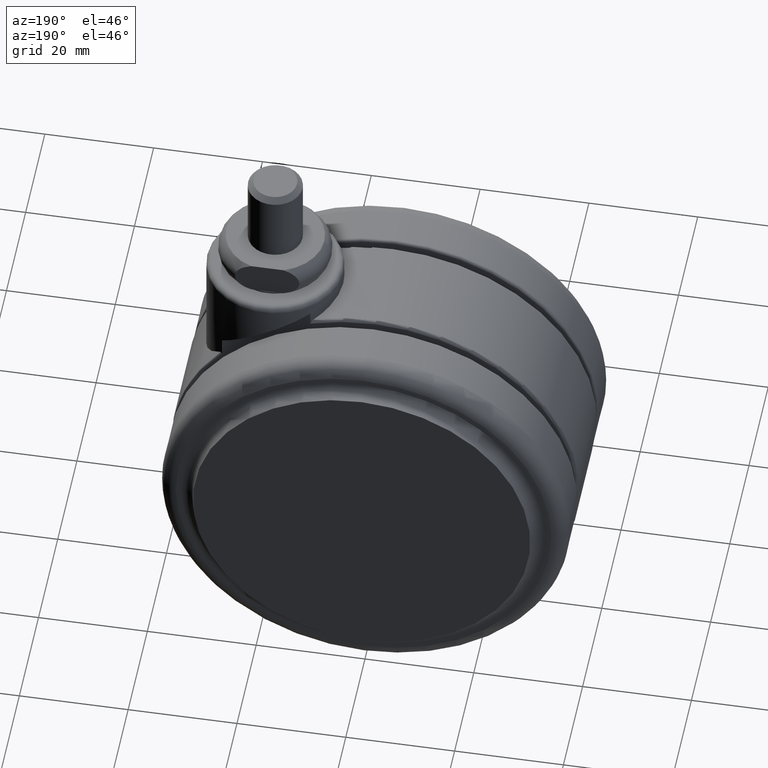
[diagram: clean part render]
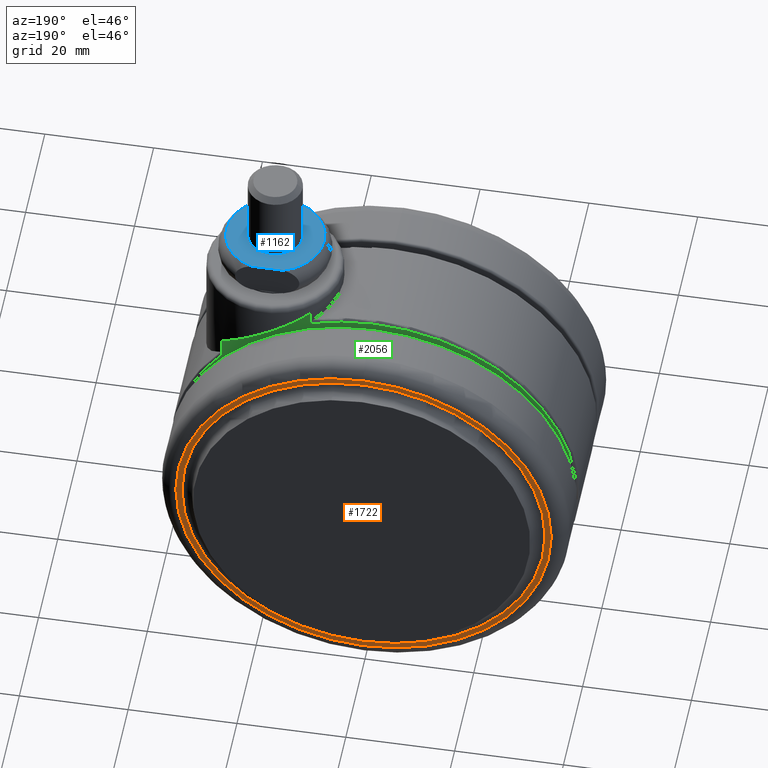
[diagram: same view with three faces highlighted in distinct colors, each labeled with its STEP entity id]
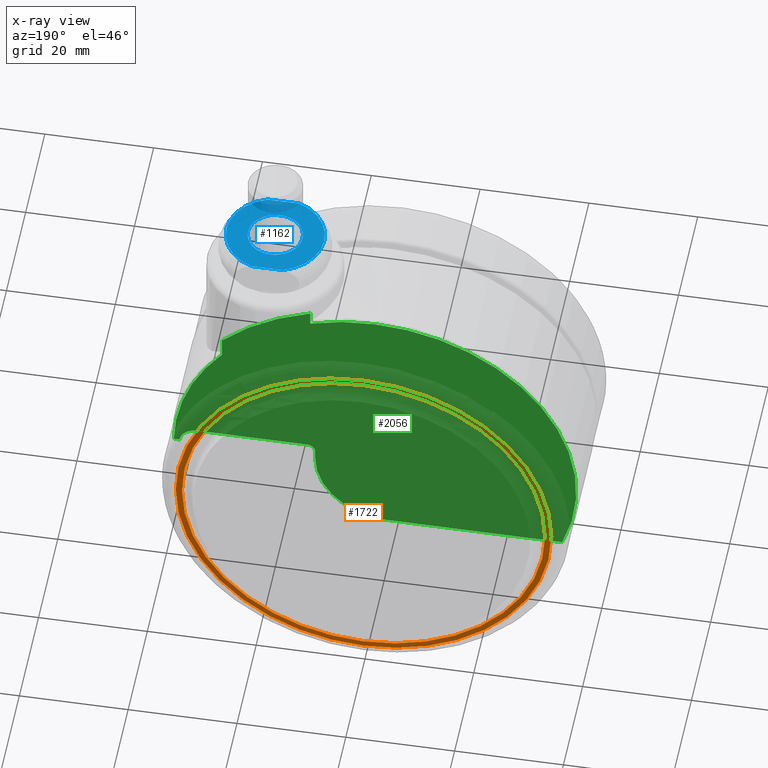
[diagram: x-ray of the same camera — body ghosted, the three highlighted faces saturated]
A machine part, auxiliary view with three faces highlighted in distinct colors.
The next image is the same camera in x-ray (body ghosted, the three faces saturated) — at least one of them is partly hidden behind the body in this view.
Their STEP definitions:

[orange] entity #1722 — the highlighted planar face has unit normal (0, 1, 0).
#18 = DIRECTION ( 'NONE',  ( -1.582413479254075000E-015, -1.000000000000000000, 0.0000000000000000000 ) ) ;
#119 = CARTESIAN_POINT ( 'NONE',  ( -20.00000000000000000, 21.50000000000000000, -40.50000000000000000 ) ) ;
#217 = CARTESIAN_POINT ( 'NONE',  ( -20.00000000000000400, 21.50000000000000000, -5.999999999999998200 ) ) ;
#250 = DIRECTION ( 'NONE',  ( 0.0000000000000000000, 0.0000000000000000000, -1.000000000000000000 ) ) ;
#341 = ORIENTED_EDGE ( 'NONE', *, *, #1208, .F. ) ;
#386 = CIRCLE ( 'NONE', #2984, 34.50000000000000700 ) ;
#496 = DIRECTION ( 'NONE',  ( 0.0000000000000000000, 0.0000000000000000000, -1.000000000000000000 ) ) ;
#521 = DIRECTION ( 'NONE',  ( -1.582413479254075000E-015, -1.000000000000000000, 0.0000000000000000000 ) ) ;
#576 = FACE_OUTER_BOUND ( 'NONE', #3151, .T. ) ;
#641 = PLANE ( 'NONE',  #2205 ) ;
#795 = CARTESIAN_POINT ( 'NONE',  ( -20.00000000000000000, 21.50000000000000000, -40.50000000000000000 ) ) ;
#810 = EDGE_CURVE ( 'NONE', #3105, #3437, #2937, .T. ) ;
#842 = DIRECTION ( 'NONE',  ( -1.582413479254075000E-015, -1.000000000000000000, 0.0000000000000000000 ) ) ;
#872 = CARTESIAN_POINT ( 'NONE',  ( -20.00000000000000000, 21.50000000000000000, -40.50000000000000000 ) ) ;
#907 = CARTESIAN_POINT ( 'NONE',  ( -20.00000000000000400, 21.50000000000000000, -73.88327505756353700 ) ) ;
#1040 = EDGE_CURVE ( 'NONE', #3437, #3105, #3086, .T. ) ;
#1069 = AXIS2_PLACEMENT_3D ( 'NONE', #872, #842, #250 ) ;
#1208 = EDGE_CURVE ( 'NONE', #1267, #1721, #386, .T. ) ;
#1267 = VERTEX_POINT ( 'NONE', #217 ) ;
#1274 = ORIENTED_EDGE ( 'NONE', *, *, #1040, .T. ) ;
#1403 = EDGE_CURVE ( 'NONE', #1721, #1267, #1914, .T. ) ;
#1420 = DIRECTION ( 'NONE',  ( -1.582413479254075000E-015, -1.000000000000000000, 0.0000000000000000000 ) ) ;
#1557 = DIRECTION ( 'NONE',  ( 0.0000000000000000000, 0.0000000000000000000, -1.000000000000000000 ) ) ;
#1635 = CARTESIAN_POINT ( 'NONE',  ( -20.00000000000000000, 21.50000000000000000, -75.00000000000001400 ) ) ;
#1704 = DIRECTION ( 'NONE',  ( 0.0000000000000000000, 0.0000000000000000000, -1.000000000000000000 ) ) ;
#1721 = VERTEX_POINT ( 'NONE', #1635 ) ;
#1722 = ADVANCED_FACE ( 'NONE', ( #576, #2196 ), #641, .T. ) ;
#1844 = DIRECTION ( 'NONE',  ( 1.582413479254075000E-015, 1.000000000000000000, 0.0000000000000000000 ) ) ;
#1914 = CIRCLE ( 'NONE', #1069, 34.50000000000000700 ) ;
#2196 = FACE_BOUND ( 'NONE', #3004, .T. ) ;
#2205 = AXIS2_PLACEMENT_3D ( 'NONE', #3090, #1844, #1557 ) ;
#2554 = DIRECTION ( 'NONE',  ( 0.0000000000000000000, 0.0000000000000000000, -1.000000000000000000 ) ) ;
#2937 = CIRCLE ( 'NONE', #3273, 33.38327505756375800 ) ;
#2984 = AXIS2_PLACEMENT_3D ( 'NONE', #795, #521, #496 ) ;
#3004 = EDGE_LOOP ( 'NONE', ( #3881, #1274 ) ) ;
#3086 = CIRCLE ( 'NONE', #3854, 33.38327505756375800 ) ;
#3090 = CARTESIAN_POINT ( 'NONE',  ( -53.38327505756370100, 21.50000000000000000, -40.50000000000000000 ) ) ;
#3095 = ORIENTED_EDGE ( 'NONE', *, *, #1403, .F. ) ;
#3105 = VERTEX_POINT ( 'NONE', #907 ) ;
#3151 = EDGE_LOOP ( 'NONE', ( #3095, #341 ) ) ;
#3273 = AXIS2_PLACEMENT_3D ( 'NONE', #3643, #1420, #1704 ) ;
#3437 = VERTEX_POINT ( 'NONE', #3485 ) ;
#3485 = CARTESIAN_POINT ( 'NONE',  ( -20.00000000000000700, 21.50000000000000000, -7.116724942436476900 ) ) ;
#3643 = CARTESIAN_POINT ( 'NONE',  ( -20.00000000000000000, 21.50000000000000000, -40.50000000000000000 ) ) ;
#3854 = AXIS2_PLACEMENT_3D ( 'NONE', #119, #18, #2554 ) ;
#3881 = ORIENTED_EDGE ( 'NONE', *, *, #810, .T. ) ;

[blue] entity #1162 — the highlighted planar face has unit normal (0, 0, 1).
#73 = CARTESIAN_POINT ( 'NONE',  ( 0.0000000000000000000, 2.842170943040399500E-014, 6.499999999999730000 ) ) ;
#80 = EDGE_LOOP ( 'NONE', ( #402, #891 ) ) ;
#118 = CARTESIAN_POINT ( 'NONE',  ( 9.165151389911629900, 8.500000000000000000, 6.499999999999619900 ) ) ;
#158 = FACE_OUTER_BOUND ( 'NONE', #634, .T. ) ;
#167 = VERTEX_POINT ( 'NONE', #3459 ) ;
#187 = CARTESIAN_POINT ( 'NONE',  ( 0.0000000000000000000, 0.0000000000000000000, 6.500000005047589900 ) ) ;
#256 = ORIENTED_EDGE ( 'NONE', *, *, #3414, .F. ) ;
#380 = DIRECTION ( 'NONE',  ( 1.000000000000000000, 0.0000000000000000000, 0.0000000000000000000 ) ) ;
#402 = ORIENTED_EDGE ( 'NONE', *, *, #1901, .F. ) ;
#416 = ORIENTED_EDGE ( 'NONE', *, *, #3011, .F. ) ;
#503 = DIRECTION ( 'NONE',  ( -1.000000000000000000, 0.0000000000000000000, 0.0000000000000000000 ) ) ;
#508 = VERTEX_POINT ( 'NONE', #3479 ) ;
#519 = EDGE_CURVE ( 'NONE', #167, #2029, #2061, .T. ) ;
#608 = ORIENTED_EDGE ( 'NONE', *, *, #2011, .T. ) ;
#632 = CIRCLE ( 'NONE', #1872, 5.000000000000000000 ) ;
#634 = EDGE_LOOP ( 'NONE', ( #608, #1307, #416, #2365, #256 ) ) ;
#664 = VERTEX_POINT ( 'NONE', #1850 ) ;
#778 = DIRECTION ( 'NONE',  ( 0.0000000000000000000, 0.0000000000000000000, -1.000000000000000000 ) ) ;
#790 = CIRCLE ( 'NONE', #2077, 8.999999305340569600 ) ;
#889 = DIRECTION ( 'NONE',  ( 0.0000000000000000000, 0.0000000000000000000, 1.000000000000000000 ) ) ;
#891 = ORIENTED_EDGE ( 'NONE', *, *, #1426, .F. ) ;
#1142 = VECTOR ( 'NONE', #2240, 1000.000000000000000 ) ;
#1150 = AXIS2_PLACEMENT_3D ( 'NONE', #73, #2206, #380 ) ;
#1162 = ADVANCED_FACE ( 'NONE', ( #158, #3408 ), #2968, .T. ) ;
#1282 = CARTESIAN_POINT ( 'NONE',  ( 0.0000000000000000000, 0.0000000000000000000, 6.500000005047589900 ) ) ;
#1307 = ORIENTED_EDGE ( 'NONE', *, *, #519, .F. ) ;
#1315 = VERTEX_POINT ( 'NONE', #3580 ) ;
#1426 = EDGE_CURVE ( 'NONE', #664, #1986, #632, .T. ) ;
#1584 = DIRECTION ( 'NONE',  ( -1.000000000000000000, 0.0000000000000000000, 0.0000000000000000000 ) ) ;
#1627 = CARTESIAN_POINT ( 'NONE',  ( -5.000000000000000000, 2.842170943040399500E-014, 6.499999999999730000 ) ) ;
#1630 = LINE ( 'NONE', #118, #1142 ) ;
#1850 = CARTESIAN_POINT ( 'NONE',  ( 5.000000000000000000, 2.903403282997767100E-014, 6.499999999999730000 ) ) ;
#1872 = AXIS2_PLACEMENT_3D ( 'NONE', #3032, #889, #3923 ) ;
#1901 = EDGE_CURVE ( 'NONE', #1986, #664, #3345, .T. ) ;
#1905 = AXIS2_PLACEMENT_3D ( 'NONE', #2907, #778, #2585 ) ;
#1927 = CIRCLE ( 'NONE', #2825, 8.999999305340569600 ) ;
#1975 = CARTESIAN_POINT ( 'NONE',  ( 2.958037778009130000, 8.500000000000000000, 6.499999999999619900 ) ) ;
#1986 = VERTEX_POINT ( 'NONE', #1627 ) ;
#2011 = EDGE_CURVE ( 'NONE', #3800, #2029, #1630, .T. ) ;
#2029 = VERTEX_POINT ( 'NONE', #3205 ) ;
#2061 = CIRCLE ( 'NONE', #1905, 8.999999305340569600 ) ;
#2077 = AXIS2_PLACEMENT_3D ( 'NONE', #187, #2320, #503 ) ;
#2206 = DIRECTION ( 'NONE',  ( 0.0000000000000000000, 0.0000000000000000000, 1.000000000000000000 ) ) ;
#2240 = DIRECTION ( 'NONE',  ( -1.000000000000000000, -0.0000000000000000000, -0.0000000000000000000 ) ) ;
#2314 = DIRECTION ( 'NONE',  ( 1.000000000000000000, 0.0000000000000000000, 0.0000000000000000000 ) ) ;
#2320 = DIRECTION ( 'NONE',  ( 0.0000000000000000000, 0.0000000000000000000, -1.000000000000000000 ) ) ;
#2351 = AXIS2_PLACEMENT_3D ( 'NONE', #3251, #2580, #2314 ) ;
#2365 = ORIENTED_EDGE ( 'NONE', *, *, #2766, .T. ) ;
#2496 = VECTOR ( 'NONE', #3889, 1000.000000000000000 ) ;
#2580 = DIRECTION ( 'NONE',  ( 0.0000000000000000000, 0.0000000000000000000, 1.000000000000000000 ) ) ;
#2585 = DIRECTION ( 'NONE',  ( -1.000000000000000000, 0.0000000000000000000, 0.0000000000000000000 ) ) ;
#2766 = EDGE_CURVE ( 'NONE', #1315, #508, #3317, .T. ) ;
#2825 = AXIS2_PLACEMENT_3D ( 'NONE', #1282, #3416, #1584 ) ;
#2907 = CARTESIAN_POINT ( 'NONE',  ( 0.0000000000000000000, 0.0000000000000000000, 6.500000005047589900 ) ) ;
#2968 = PLANE ( 'NONE',  #2351 ) ;
#3011 = EDGE_CURVE ( 'NONE', #1315, #167, #1927, .T. ) ;
#3032 = CARTESIAN_POINT ( 'NONE',  ( 0.0000000000000000000, 2.842170943040399500E-014, 6.499999999999730000 ) ) ;
#3205 = CARTESIAN_POINT ( 'NONE',  ( -2.958037778009130000, 8.500000000000000000, 6.500000005047589900 ) ) ;
#3251 = CARTESIAN_POINT ( 'NONE',  ( 8.999999999999550600, 0.0000000000000000000, 6.500000002523619500 ) ) ;
#3317 = LINE ( 'NONE', #3597, #2496 ) ;
#3345 = CIRCLE ( 'NONE', #1150, 5.000000000000000000 ) ;
#3408 = FACE_BOUND ( 'NONE', #80, .T. ) ;
#3414 = EDGE_CURVE ( 'NONE', #3800, #508, #790, .T. ) ;
#3416 = DIRECTION ( 'NONE',  ( 0.0000000000000000000, 0.0000000000000000000, -1.000000000000000000 ) ) ;
#3459 = CARTESIAN_POINT ( 'NONE',  ( -8.999999305340566000, 0.0000000000000000000, 6.500000005047589900 ) ) ;
#3479 = CARTESIAN_POINT ( 'NONE',  ( 2.958037778009625200, -8.499999999999911200, 6.500000005047589900 ) ) ;
#3580 = CARTESIAN_POINT ( 'NONE',  ( -2.958037778009625200, -8.499999999999911200, 6.499999999999619900 ) ) ;
#3597 = CARTESIAN_POINT ( 'NONE',  ( -9.165151389911761400, -8.499999999999911200, 6.499999999999619900 ) ) ;
#3800 = VERTEX_POINT ( 'NONE', #1975 ) ;
#3889 = DIRECTION ( 'NONE',  ( 1.000000000000000000, -0.0000000000000000000, -0.0000000000000000000 ) ) ;
#3923 = DIRECTION ( 'NONE',  ( 1.000000000000000000, 0.0000000000000000000, 0.0000000000000000000 ) ) ;

[green] entity #2056 — the highlighted planar face has unit normal (0, -1, 0).
#33 = EDGE_CURVE ( 'NONE', #1377, #2020, #1780, .T. ) ;
#59 = LINE ( 'NONE', #1938, #2385 ) ;
#112 = DIRECTION ( 'NONE',  ( -0.0000000000000000000, -0.0000000000000000000, -1.000000000000000000 ) ) ;
#146 = VECTOR ( 'NONE', #283, 1000.000000000000000 ) ;
#193 = CIRCLE ( 'NONE', #3793, 13.91033914236718200 ) ;
#242 = ORIENTED_EDGE ( 'NONE', *, *, #1312, .T. ) ;
#244 = PLANE ( 'NONE',  #1289 ) ;
#283 = DIRECTION ( 'NONE',  ( 0.0000000000000000000, 0.0000000000000000000, 1.000000000000000000 ) ) ;
#336 = DIRECTION ( 'NONE',  ( 0.0000000000000000000, 0.0000000000000000000, -1.000000000000000000 ) ) ;
#364 = VERTEX_POINT ( 'NONE', #3013 ) ;
#379 = DIRECTION ( 'NONE',  ( 0.0000000000000000000, -1.000000000000000000, 0.0000000000000000000 ) ) ;
#410 = CARTESIAN_POINT ( 'NONE',  ( 12.61329079872222200, 9.500000000000199000, -40.50000000000000000 ) ) ;
#420 = VERTEX_POINT ( 'NONE', #2449 ) ;
#422 = EDGE_CURVE ( 'NONE', #1831, #420, #3192, .T. ) ;
#426 = CARTESIAN_POINT ( 'NONE',  ( 16.99662146737135200, 9.500000000000199000, -40.00000000000000000 ) ) ;
#518 = ORIENTED_EDGE ( 'NONE', *, *, #3359, .T. ) ;
#561 = CARTESIAN_POINT ( 'NONE',  ( -20.00000000000045100, 9.500000000000199000, -40.50000000000000000 ) ) ;
#607 = ORIENTED_EDGE ( 'NONE', *, *, #3260, .T. ) ;
#643 = VERTEX_POINT ( 'NONE', #1006 ) ;
#683 = EDGE_CURVE ( 'NONE', #2020, #2235, #3138, .T. ) ;
#758 = CARTESIAN_POINT ( 'NONE',  ( 12.61329079872222200, 9.500000000000199000, -37.11339081420354800 ) ) ;
#859 = AXIS2_PLACEMENT_3D ( 'NONE', #410, #379, #336 ) ;
#864 = VECTOR ( 'NONE', #2813, 1000.000000000000000 ) ;
#865 = DIRECTION ( 'NONE',  ( 0.0000000000000000000, 0.0000000000000000000, -1.000000000000000000 ) ) ;
#897 = ORIENTED_EDGE ( 'NONE', *, *, #33, .T. ) ;
#899 = CARTESIAN_POINT ( 'NONE',  ( -8.124038404635760100, 9.500000000000199000, -1000.000000000000000 ) ) ;
#911 = AXIS2_PLACEMENT_3D ( 'NONE', #1218, #3356, #1521 ) ;
#1006 = CARTESIAN_POINT ( 'NONE',  ( -9.000000000000449400, 9.500000000000199000, -40.50000000000000000 ) ) ;
#1082 = ORIENTED_EDGE ( 'NONE', *, *, #683, .T. ) ;
#1170 = ORIENTED_EDGE ( 'NONE', *, *, #1625, .T. ) ;
#1218 = CARTESIAN_POINT ( 'NONE',  ( -7.500000000000450300, 9.500000000000199000, -38.61339081420354800 ) ) ;
#1289 = AXIS2_PLACEMENT_3D ( 'NONE', #561, #2686, #865 ) ;
#1312 = EDGE_CURVE ( 'NONE', #643, #1831, #193, .T. ) ;
#1377 = VERTEX_POINT ( 'NONE', #1797 ) ;
#1430 = ORIENTED_EDGE ( 'NONE', *, *, #1574, .T. ) ;
#1443 = ORIENTED_EDGE ( 'NONE', *, *, #1538, .T. ) ;
#1521 = DIRECTION ( 'NONE',  ( 0.0000000000000000000, 0.0000000000000000000, -1.000000000000000000 ) ) ;
#1526 = DIRECTION ( 'NONE',  ( -0.0000000000000000000, -1.000000000000000000, -0.0000000000000000000 ) ) ;
#1538 = EDGE_CURVE ( 'NONE', #3783, #1377, #2668, .T. ) ;
#1546 = DIRECTION ( 'NONE',  ( -1.000000000000000000, -0.0000000000000000000, -0.0000000000000000000 ) ) ;
#1562 = VERTEX_POINT ( 'NONE', #2045 ) ;
#1574 = EDGE_CURVE ( 'NONE', #3799, #3475, #3399, .T. ) ;
#1581 = DIRECTION ( 'NONE',  ( -0.0000000000000000000, 1.000000000000000000, -0.0000000000000000000 ) ) ;
#1625 = EDGE_CURVE ( 'NONE', #1562, #643, #2484, .T. ) ;
#1670 = CARTESIAN_POINT ( 'NONE',  ( -8.124038404635760100, 9.500000000000199000, -5.457717879889470300 ) ) ;
#1752 = DIRECTION ( 'NONE',  ( -0.0000000000000000000, 1.000000000000000000, -0.0000000000000000000 ) ) ;
#1780 = CIRCLE ( 'NONE', #859, 3.386609185796432400 ) ;
#1797 = CARTESIAN_POINT ( 'NONE',  ( 15.96278654843155000, 9.500000000000199000, -40.00000000000000000 ) ) ;
#1831 = VERTEX_POINT ( 'NONE', #2800 ) ;
#1840 = ORIENTED_EDGE ( 'NONE', *, *, #2175, .F. ) ;
#1842 = VERTEX_POINT ( 'NONE', #2192 ) ;
#1938 = CARTESIAN_POINT ( 'NONE',  ( 8.124038404635760100, 9.500000000000199000, -1000.000000000000000 ) ) ;
#2020 = VERTEX_POINT ( 'NONE', #758 ) ;
#2045 = CARTESIAN_POINT ( 'NONE',  ( -9.000000000000449400, 9.500000000000199000, -38.61339081420354800 ) ) ;
#2056 = ADVANCED_FACE ( 'NONE', ( #2921 ), #244, .F. ) ;
#2104 = EDGE_LOOP ( 'NONE', ( #518, #607, #1443, #897, #1082, #2297, #1170, #242, #3519, #2996, #1430, #1840 ) ) ;
#2157 = CIRCLE ( 'NONE', #2778, 37.00000000000000000 ) ;
#2175 = EDGE_CURVE ( 'NONE', #364, #3475, #3531, .T. ) ;
#2192 = CARTESIAN_POINT ( 'NONE',  ( 8.124038404635760100, 9.500000000000199000, -16.45756951108014800 ) ) ;
#2235 = VERTEX_POINT ( 'NONE', #3680 ) ;
#2297 = ORIENTED_EDGE ( 'NONE', *, *, #3146, .T. ) ;
#2305 = VECTOR ( 'NONE', #3126, 1000.000000000000000 ) ;
#2350 = VECTOR ( 'NONE', #1546, 1000.000000000000000 ) ;
#2385 = VECTOR ( 'NONE', #112, 1000.000000000000000 ) ;
#2449 = CARTESIAN_POINT ( 'NONE',  ( -54.40458676600820100, 9.500000000000199000, -54.11339081420359800 ) ) ;
#2484 = LINE ( 'NONE', #3908, #864 ) ;
#2576 = VECTOR ( 'NONE', #2654, 1000.000000000000000 ) ;
#2637 = CIRCLE ( 'NONE', #911, 1.500000000000001300 ) ;
#2654 = DIRECTION ( 'NONE',  ( -1.000000000000000000, -0.0000000000000000000, -0.0000000000000000000 ) ) ;
#2668 = LINE ( 'NONE', #3577, #2576 ) ;
#2686 = DIRECTION ( 'NONE',  ( 0.0000000000000000000, -1.000000000000000000, 0.0000000000000000000 ) ) ;
#2695 = AXIS2_PLACEMENT_3D ( 'NONE', #3589, #1752, #3885 ) ;
#2758 = CARTESIAN_POINT ( 'NONE',  ( -54.74280068914399800, 9.500000000000199000, -54.11339081420359800 ) ) ;
#2778 = AXIS2_PLACEMENT_3D ( 'NONE', #3411, #1581, #3723 ) ;
#2800 = CARTESIAN_POINT ( 'NONE',  ( -20.05147125534830400, 9.500000000000199000, -54.11339081420359800 ) ) ;
#2813 = DIRECTION ( 'NONE',  ( -0.0000000000000000000, -0.0000000000000000000, -1.000000000000000000 ) ) ;
#2921 = FACE_OUTER_BOUND ( 'NONE', #2104, .T. ) ;
#2962 = DIRECTION ( 'NONE',  ( 9.976599179775867800E-016, 0.0000000000000000000, -1.000000000000000000 ) ) ;
#2991 = DIRECTION ( 'NONE',  ( -0.0000000000000000000, 1.000000000000000000, -0.0000000000000000000 ) ) ;
#2996 = ORIENTED_EDGE ( 'NONE', *, *, #3488, .T. ) ;
#3013 = CARTESIAN_POINT ( 'NONE',  ( 8.124038404635760100, 9.500000000000289500, -12.76395010433990000 ) ) ;
#3046 = CARTESIAN_POINT ( 'NONE',  ( -22.91033914236765100, 9.500000000000199000, -40.50000000000000000 ) ) ;
#3062 = CARTESIAN_POINT ( 'NONE',  ( -7.500000000000450300, 9.500000000000199000, -37.11339081420354800 ) ) ;
#3126 = DIRECTION ( 'NONE',  ( -1.000000000000000000, -0.0000000000000000000, -0.0000000000000000000 ) ) ;
#3133 = CIRCLE ( 'NONE', #2695, 37.00000000000000000 ) ;
#3138 = LINE ( 'NONE', #3062, #2305 ) ;
#3145 = AXIS2_PLACEMENT_3D ( 'NONE', #3366, #1526, #3669 ) ;
#3146 = EDGE_CURVE ( 'NONE', #2235, #1562, #2637, .T. ) ;
#3192 = LINE ( 'NONE', #2758, #2350 ) ;
#3260 = EDGE_CURVE ( 'NONE', #1842, #3783, #2157, .T. ) ;
#3356 = DIRECTION ( 'NONE',  ( 0.0000000000000000000, -1.000000000000000000, 0.0000000000000000000 ) ) ;
#3359 = EDGE_CURVE ( 'NONE', #364, #1842, #59, .T. ) ;
#3366 = CARTESIAN_POINT ( 'NONE',  ( -20.00000000000045100, 9.500000000000289500, -40.50000000000000000 ) ) ;
#3399 = LINE ( 'NONE', #899, #146 ) ;
#3411 = CARTESIAN_POINT ( 'NONE',  ( -20.00000000000045100, 9.500000000000199000, -40.50000000000000000 ) ) ;
#3475 = VERTEX_POINT ( 'NONE', #3578 ) ;
#3488 = EDGE_CURVE ( 'NONE', #420, #3799, #3133, .T. ) ;
#3519 = ORIENTED_EDGE ( 'NONE', *, *, #422, .T. ) ;
#3531 = CIRCLE ( 'NONE', #3145, 39.50000000000000000 ) ;
#3577 = CARTESIAN_POINT ( 'NONE',  ( 15.49989998451865100, 9.500000000000199000, -40.00000000000000000 ) ) ;
#3578 = CARTESIAN_POINT ( 'NONE',  ( -8.124038404635760100, 9.500000000000289500, -2.827575918379995100 ) ) ;
#3589 = CARTESIAN_POINT ( 'NONE',  ( -20.00000000000045100, 9.500000000000199000, -40.50000000000000000 ) ) ;
#3669 = DIRECTION ( 'NONE',  ( 2.635023001483757700E-015, 0.0000000000000000000, 1.000000000000000000 ) ) ;
#3680 = CARTESIAN_POINT ( 'NONE',  ( -7.500000000000450300, 9.500000000000199000, -37.11339081420354800 ) ) ;
#3723 = DIRECTION ( 'NONE',  ( -8.439195288535818800E-016, 0.0000000000000000000, -1.000000000000000000 ) ) ;
#3783 = VERTEX_POINT ( 'NONE', #426 ) ;
#3793 = AXIS2_PLACEMENT_3D ( 'NONE', #3046, #2991, #2962 ) ;
#3799 = VERTEX_POINT ( 'NONE', #1670 ) ;
#3885 = DIRECTION ( 'NONE',  ( 0.0000000000000000000, 0.0000000000000000000, -1.000000000000000000 ) ) ;
#3908 = CARTESIAN_POINT ( 'NONE',  ( -9.000000000000449400, 9.500000000000199000, -40.50000000000000000 ) ) ;